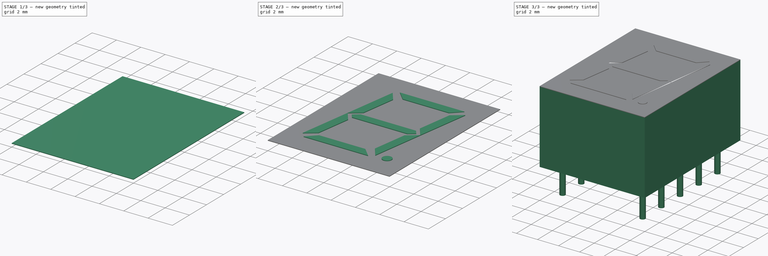
[diagram: build sequence overview — one tinted view per stage of 3, left to right]
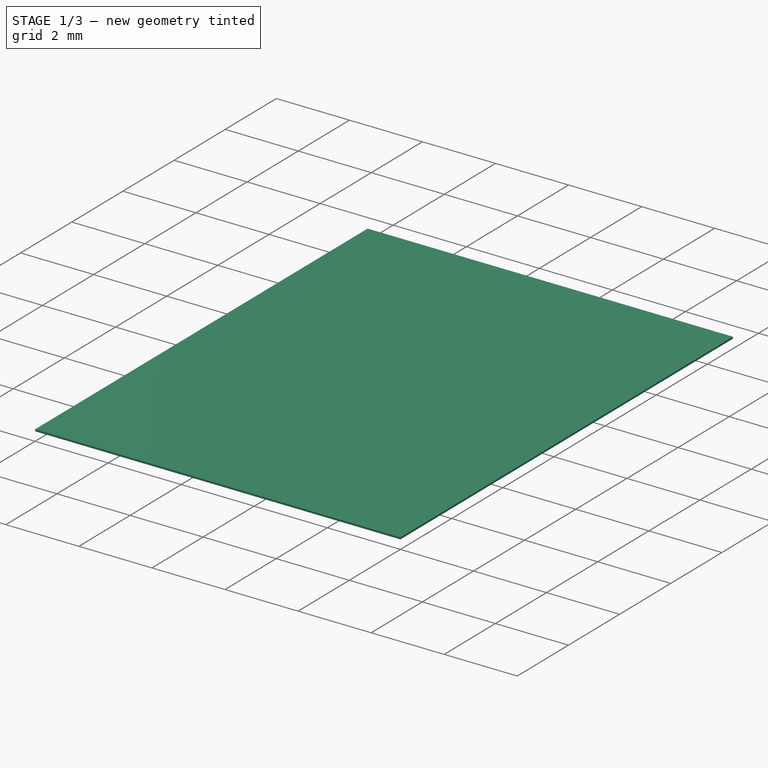
[diagram: stage 1 of 3 — iso view after this stage's code; geometry added in this stage tinted green]
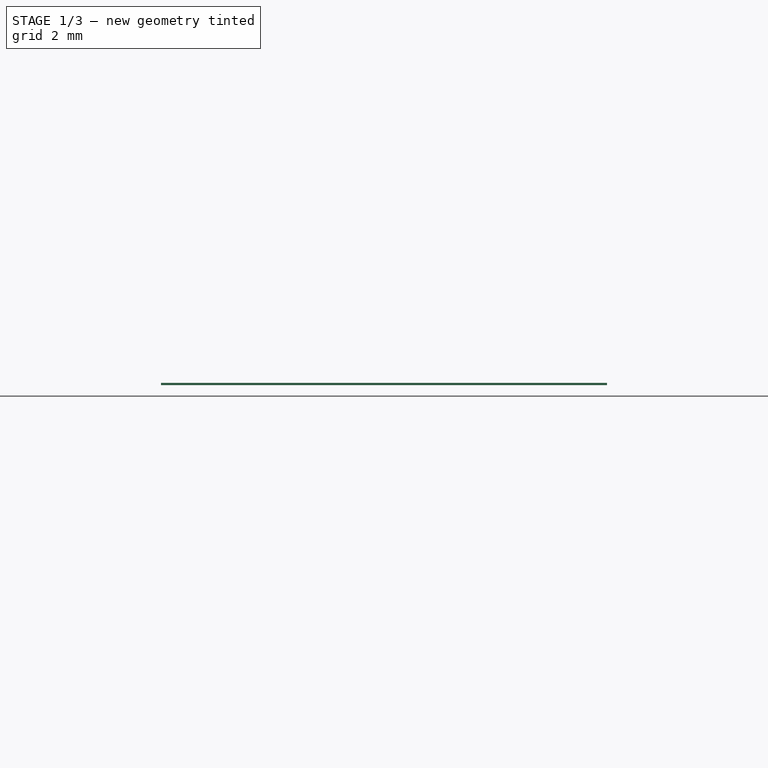
[diagram: stage 1 of 3 — front view after this stage's code; geometry added in this stage tinted green]
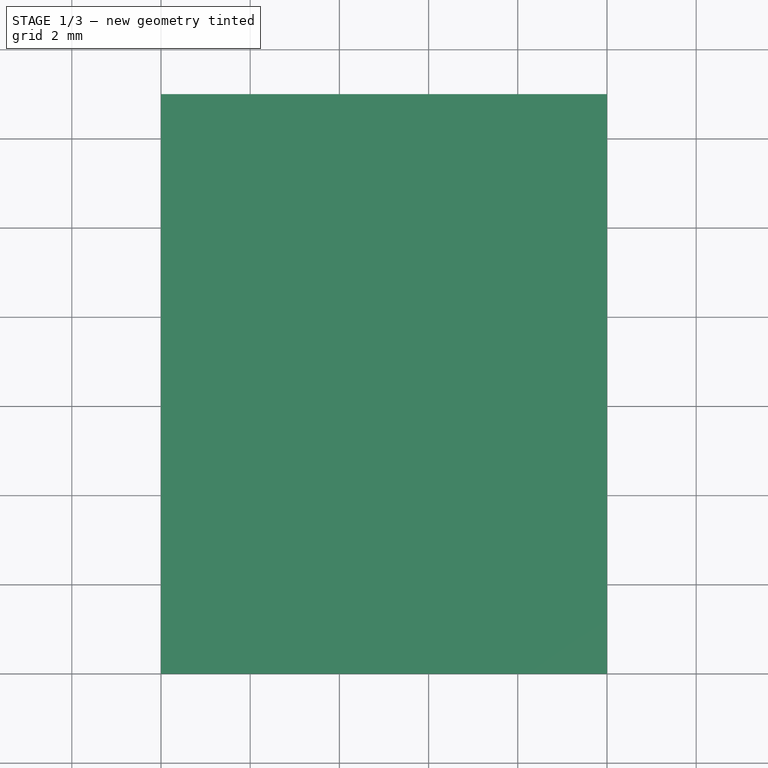
[diagram: stage 1 of 3 — top view after this stage's code; geometry added in this stage tinted green]
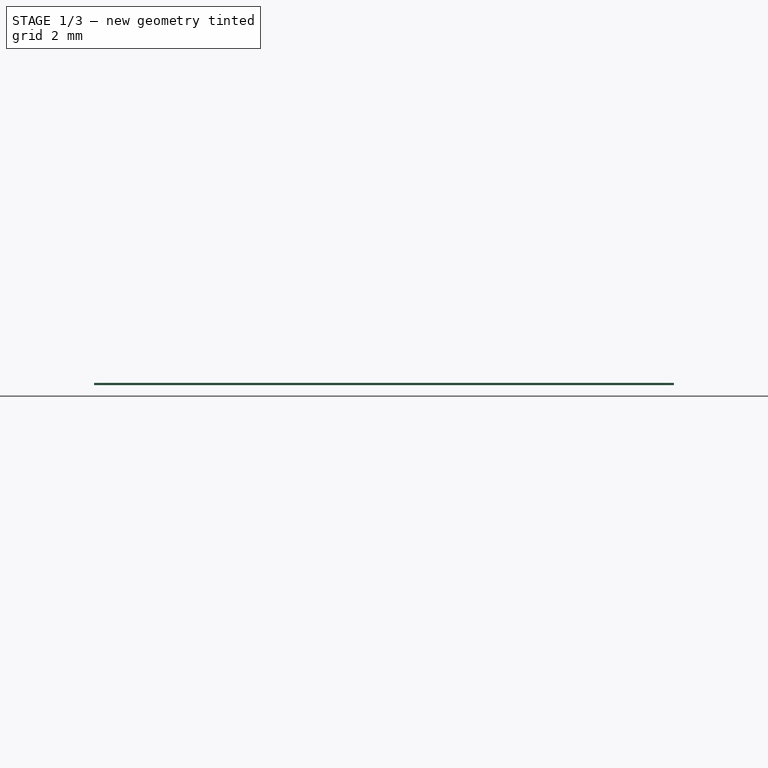
[diagram: stage 1 of 3 — right view after this stage's code; geometry added in this stage tinted green]
FCSTD DOCUMENT  (FreeCAD 1.0R39319 (Git))
Label: 1-digit-13mm
License: All rights reserved
LicenseURL: https://en.wikipedia.org/wiki/All_rights_reserved
objects: Sketcher::SketchObject×4, Part::Extrusion×4, Part::MultiFuse×1
note: 13 computed .brp shape members not serialized (recipe doc carries the construction recipe); baked Part::Feature solids carry a one-line shape summary decoded from their .brp

FEATURE [Sketcher::SketchObject] Sketch
  ArcFitTolerance = 1e-06
  FullyConstrained = true
  MakeInternals = false
  sketch-geometry (4):
    g0: LineSegment StartX=0 StartY=0 StartZ=0 EndX=10 EndY=0 EndZ=0
    g1: LineSegment StartX=10 StartY=0 StartZ=0 EndX=10 EndY=13 EndZ=0
    g2: LineSegment StartX=10 StartY=13 StartZ=0 EndX=0 EndY=13 EndZ=0
    g3: LineSegment StartX=0 StartY=13 StartZ=0 EndX=0 EndY=0 EndZ=0
  constraints (11):
    c: Coincident(g0,g1)
    c: Coincident(g1,g2)
    c: Coincident(g2,g3)
    c: Coincident(g3,g0)
    c: Horizontal(g0)
    c: Horizontal(g2)
    c: Vertical(g1)
    c: Vertical(g3)
    c: Distance(g1,g3) = 10
    c: Distance(g0,g2) = 13
    c: Coincident(g0,g-1)
FEATURE [Part::Extrusion] Extrude
  Base = -> Sketch
  Dir = (0,0,1)
  DirMode = 2
  FaceMakerClass = Part::FaceMakerBullseye
  FaceMakerMode = 3
  LengthFwd = 6.9
  LengthRev = 0
  Solid = true
  Symmetric = false
FEATURE [Sketcher::SketchObject] Sketch003
  ArcFitTolerance = 1e-06
  AttachmentSupport = -> [Extrude]
  ExternalGeometry = -> [Extrude]
  FullyConstrained = true
  MakeInternals = false
  MapMode = 5
  Placement = pos=(0,0,6.9) rot=(0,0,1;0rad)
  sketch-geometry (4):
    g0: LineSegment StartX=0 StartY=13 StartZ=0 EndX=0 EndY=0 EndZ=0
    g1: LineSegment StartX=0 StartY=0 StartZ=0 EndX=10 EndY=0 EndZ=0
    g2: LineSegment StartX=10 StartY=0 StartZ=0 EndX=10 EndY=13 EndZ=0
    g3: LineSegment StartX=10 StartY=13 StartZ=0 EndX=0 EndY=13 EndZ=0
  constraints (10):
    c: Coincident(g0,g1)
    c: Coincident(g1,g2)
    c: Coincident(g2,g3)
    c: Coincident(g3,g0)
    c: Vertical(g0)
    c: Vertical(g2)
    c: Horizontal(g1)
    c: Horizontal(g3)
    c: Coincident(g0,g-3)
    c: Coincident(g1,g-4)
FEATURE [Part::Extrusion] Extrude003
  Base = -> Sketch003
  Dir = (0,0,1)
  DirMode = 2
  FaceMakerClass = Part::FaceMakerBullseye
  FaceMakerMode = 3
  LengthFwd = 0.05
  LengthRev = 0
  Solid = true
  Symmetric = false
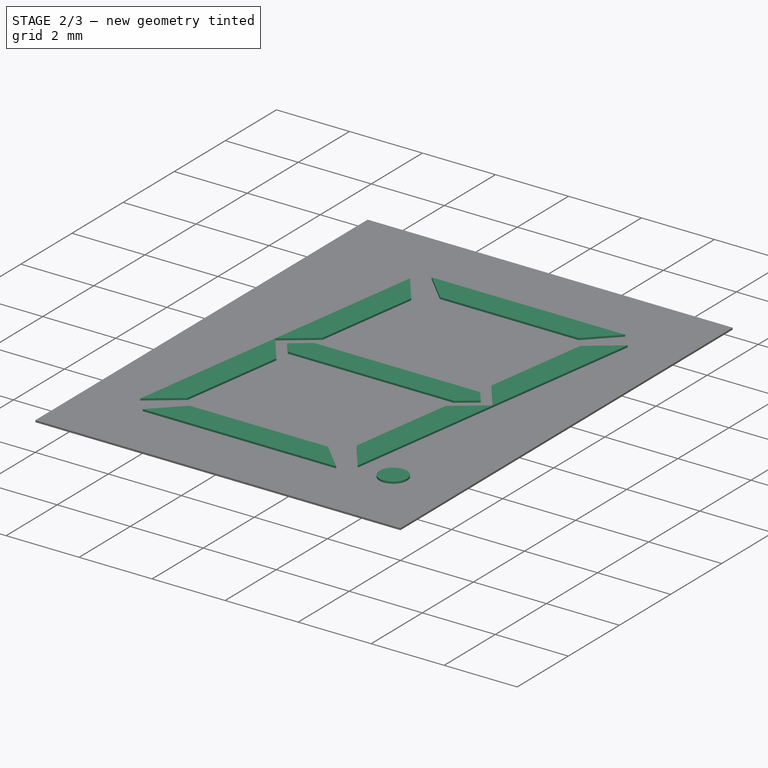
[diagram: stage 2 of 3 — iso view after this stage's code; geometry added in this stage tinted green]
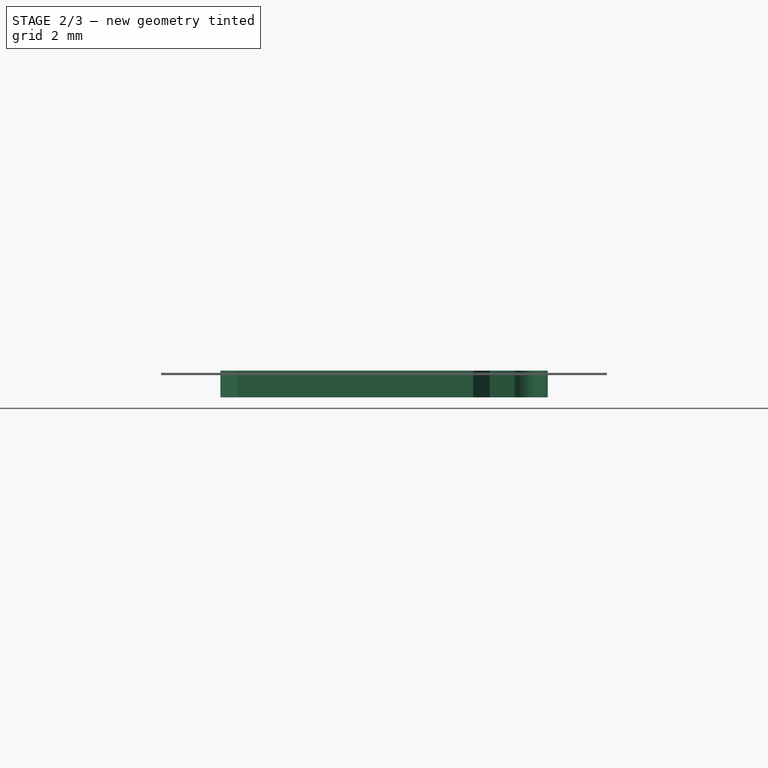
[diagram: stage 2 of 3 — front view after this stage's code; geometry added in this stage tinted green]
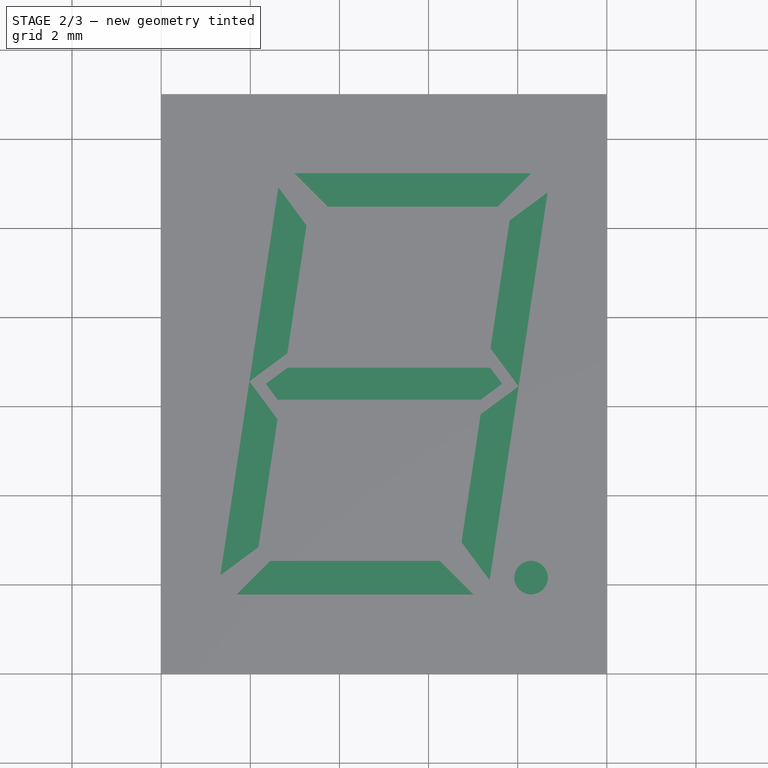
[diagram: stage 2 of 3 — top view after this stage's code; geometry added in this stage tinted green]
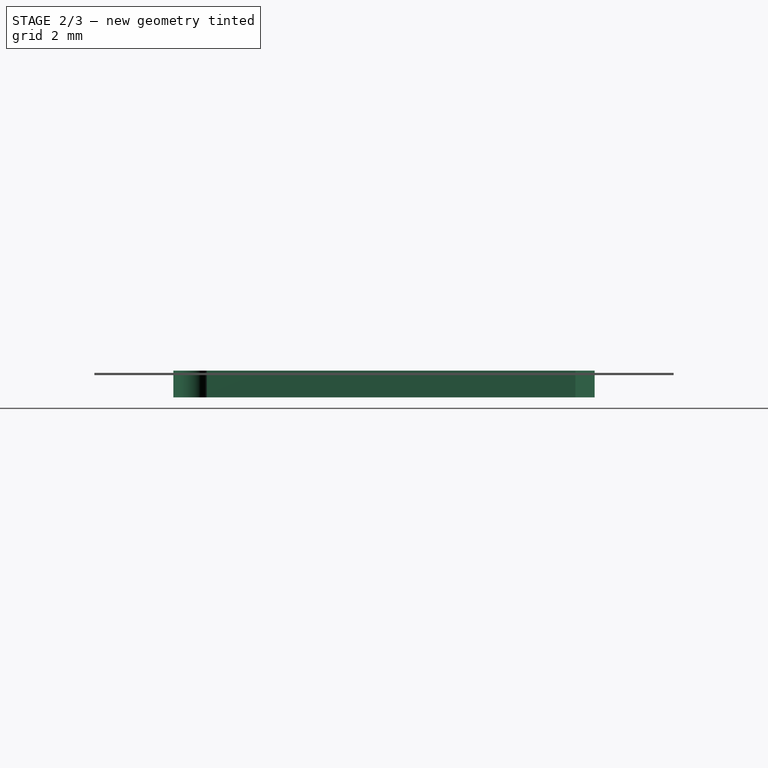
[diagram: stage 2 of 3 — right view after this stage's code; geometry added in this stage tinted green]
FEATURE [Sketcher::SketchObject] Sketch002
  ArcFitTolerance = 1e-06
  AttachmentSupport = -> [Extrude]
  ExternalGeometry = -> [Extrude]
  FullyConstrained = true
  MakeInternals = false
  MapMode = 5
  Placement = pos=(0,0,6.9) rot=(0,0,1;0rad)
  sketch-geometry (61):
    g0: LineSegment [constr] StartX=3 StartY=10.85 StartZ=0 EndX=8.3 EndY=10.85 EndZ=0
    g1: LineSegment [constr] StartX=2.35 StartY=6.5 StartZ=0 EndX=7.65 EndY=6.5 EndZ=0
    g2: LineSegment [constr] StartX=1.7 StartY=2.15 StartZ=0 EndX=7 EndY=2.15 EndZ=0
    g3: LineSegment [constr] StartX=3 StartY=10.85 StartZ=0 EndX=2.35 EndY=6.5 EndZ=0
    g4: LineSegment [constr] StartX=2.35 StartY=6.5 StartZ=0 EndX=1.7 EndY=2.15 EndZ=0
    g5: LineSegment [constr] StartX=7.65 StartY=6.5 StartZ=0 EndX=7 EndY=2.15 EndZ=0
    g6: LineSegment [constr] StartX=8.3 StartY=10.85 StartZ=0 EndX=7.65 EndY=6.5 EndZ=0
    g7: LineSegment [constr] StartX=2.35 StartY=6.5 StartZ=0 EndX=0 EndY=6.5 EndZ=0
    g8: LineSegment [constr] StartX=5 StartY=6.5 StartZ=0 EndX=5 EndY=13 EndZ=0
    g9: LineSegment [constr] StartX=3 StartY=10.85 StartZ=0 EndX=1.7 EndY=10.85 EndZ=0
    g10: LineSegment StartX=1.7 StartY=1.775 StartZ=0 EndX=7 EndY=1.775 EndZ=0
    g11: LineSegment StartX=2.45 StartY=2.525 StartZ=0 EndX=6.25 EndY=2.525 EndZ=0
    g12: LineSegment StartX=1.7 StartY=1.775 StartZ=0 EndX=2.45 EndY=2.525 EndZ=0
    g13: LineSegment StartX=7 StartY=1.775 StartZ=0 EndX=6.25 EndY=2.525 EndZ=0
    g14: LineSegment [constr] StartX=4.35 StartY=2.525 StartZ=0 EndX=4.35 EndY=1.775 EndZ=0
    g15: GeomPoint [constr] X=4.35 Y=2.15 Z=0
    g16: GeomPoint [constr] X=4.35 Y=2.15 Z=0
    g17: LineSegment StartX=3 StartY=11.225 StartZ=0 EndX=8.3 EndY=11.225 EndZ=0
    g18: LineSegment StartX=3.75 StartY=10.475 StartZ=0 EndX=7.55 EndY=10.475 EndZ=0
    g19: LineSegment StartX=3.75 StartY=10.475 StartZ=0 EndX=3 EndY=11.225 EndZ=0
    g20: LineSegment StartX=7.55 StartY=10.475 StartZ=0 EndX=8.3 EndY=11.225 EndZ=0
    g21: LineSegment [constr] StartX=5.65 StartY=11.225 StartZ=0 EndX=5.65 EndY=10.475 EndZ=0
    g22: GeomPoint [constr] X=5.65 Y=10.85 Z=0
    g23: GeomPoint [constr] X=5.65 Y=10.85 Z=0
    g24: LineSegment StartX=2.62912 StartY=10.9054 StartZ=0 EndX=1.97912 EndY=6.55542 EndZ=0
    g25: LineSegment StartX=3.26004 StartY=10.0528 StartZ=0 EndX=2.83172 EndY=7.18635 EndZ=0
    g26: LineSegment StartX=1.97912 StartY=6.55542 StartZ=0 EndX=1.32912 EndY=2.20542 EndZ=0
    g27: LineSegment StartX=2.61004 StartY=5.70282 StartZ=0 EndX=2.18172 EndY=2.83635 EndZ=0
    g28: LineSegment StartX=1.97912 StartY=6.55542 StartZ=0 EndX=2.61004 EndY=5.70282 EndZ=0
    g29: LineSegment StartX=1.32912 StartY=2.20542 StartZ=0 EndX=2.18172 EndY=2.83635 EndZ=0
    g30: LineSegment StartX=1.97912 StartY=6.55542 StartZ=0 EndX=2.83172 EndY=7.18635 EndZ=0
    g31: LineSegment StartX=2.62912 StartY=10.9054 StartZ=0 EndX=3.26004 EndY=10.0528 EndZ=0
    g32: LineSegment [constr] StartX=3.04588 StartY=8.61958 StartZ=0 EndX=2.30412 EndY=8.73042 EndZ=0
    g33: GeomPoint [constr] X=2.675 Y=8.675 Z=0
    g34: GeomPoint [constr] X=2.675 Y=8.675 Z=0
    g35: LineSegment [constr] StartX=2.39588 StartY=4.26958 StartZ=0 EndX=1.65412 EndY=4.38042 EndZ=0
    g36: GeomPoint [constr] X=2.025 Y=4.325 Z=0
    g37: GeomPoint [constr] X=2.025 Y=4.325 Z=0
    g38: LineSegment StartX=8.67088 StartY=10.7946 StartZ=0 EndX=8.02088 EndY=6.44458 EndZ=0
    g39: LineSegment StartX=8.02088 StartY=6.44458 StartZ=0 EndX=7.37088 EndY=2.09458 EndZ=0
    g40: LineSegment StartX=7.16828 StartY=5.81365 StartZ=0 EndX=6.73996 EndY=2.94718 EndZ=0
    g41: LineSegment StartX=7.81828 StartY=10.1637 StartZ=0 EndX=7.38996 EndY=7.29718 EndZ=0
    g42: LineSegment StartX=8.02088 StartY=6.44458 StartZ=0 EndX=7.38996 EndY=7.29718 EndZ=0
    g43: LineSegment StartX=7.81828 StartY=10.1637 StartZ=0 EndX=8.67088 EndY=10.7946 EndZ=0
    g44: LineSegment StartX=8.02088 StartY=6.44458 StartZ=0 EndX=7.16828 EndY=5.81365 EndZ=0
    g45: LineSegment StartX=7.37088 StartY=2.09458 StartZ=0 EndX=6.73996 EndY=2.94718 EndZ=0
    g46: LineSegment [constr] StartX=7.69588 StartY=4.26958 StartZ=0 EndX=6.95412 EndY=4.38042 EndZ=0
    g47: LineSegment [constr] StartX=8.34588 StartY=8.61958 StartZ=0 EndX=7.60412 EndY=8.73042 EndZ=0
    g48: GeomPoint [constr] X=7.975 Y=8.675 Z=0
    g49: GeomPoint [constr] X=7.975 Y=8.675 Z=0
    g50: GeomPoint [constr] X=7.325 Y=4.325 Z=0
    g51: GeomPoint [constr] X=7.325 Y=4.325 Z=0
    g52: LineSegment StartX=2.35 StartY=6.5 StartZ=0 EndX=2.83462 EndY=6.85862 EndZ=0
    g53: LineSegment StartX=2.35 StartY=6.5 StartZ=0 EndX=2.61538 EndY=6.14138 EndZ=0
    g54: LineSegment StartX=7.65 StartY=6.5 StartZ=0 EndX=7.38462 EndY=6.85862 EndZ=0
    g55: LineSegment StartX=7.65 StartY=6.5 StartZ=0 EndX=7.16538 EndY=6.14138 EndZ=0
    g56: LineSegment StartX=7.16538 StartY=6.14138 StartZ=0 EndX=2.61538 EndY=6.14138 EndZ=0
    g57: LineSegment StartX=2.83462 StartY=6.85862 StartZ=0 EndX=7.38462 EndY=6.85862 EndZ=0
    g58: LineSegment [constr] StartX=5.10962 StartY=6.85862 StartZ=0 EndX=4.89038 EndY=6.14138 EndZ=0
    g59: GeomPoint [constr] X=5 Y=6.5 Z=0
    g60: Circle CenterX=8.3 CenterY=2.15 CenterZ=0 NormalX=0 NormalY=0 NormalZ=1 AngleXU=0 Radius=0.375
  constraints (139):
    c: Horizontal(g0)
    c: Horizontal(g1)
    c: Horizontal(g2)
    c: Coincident(g3,g0)
    c: Coincident(g3,g1)
    c: Coincident(g4,g1)
    c: Coincident(g4,g2)
    c: Coincident(g5,g1)
    c: Coincident(g5,g2)
    c: Coincident(g6,g0)
    c: Coincident(g6,g1)
    c: DistanceY(g3,g3) = 4.35
    c: Equal(g3,g4)
    c: DistanceX(g0,g0) = 5.3
    c: Parallel(g3,g6)
    c: Parallel(g4,g5)
    c: Parallel(g4,g3)
    c: Coincident(g7,g1)
    c: Symmetric(g-3,g-3,g7)
    c: Horizontal(g7)
    c: Symmetric(g1,g1,g8)
    c: Symmetric(g-4,g-4,g8)
    c: Vertical(g8)
    c: Coincident(g9,g0)
    c: Horizontal(g9)
    c: Vertical(g2,g9)
    c: DistanceX(g9,g9) = 1.3
    c: Horizontal(g10)
    c: Horizontal(g11)
    c: Coincident(g12,g10)
    c: Coincident(g12,g11)
    c: Coincident(g13,g10)
    c: Coincident(g13,g11)
    c: Symmetric(g11,g11,g14)
    c: Symmetric(g10,g10,g14)
    c: Vertical(g14)
    c: Angle(g10,g12) = 0.785398
    c: Equal(g2,g10)
    c: Symmetric(g14,g14,g15)
    c: Symmetric(g2,g2,g16)
    c: Coincident(g15,g16)
    c: Distance(g14) = 0.75
    c: Horizontal(g17)
    c: Horizontal(g18)
    c: Coincident(g19,g18)
    c: Coincident(g19,g17)
    c: Coincident(g20,g18)
    c: Coincident(g20,g17)
    c: Symmetric(g17,g17,g21)
    c: Symmetric(g18,g18,g21)
    c: Vertical(g21)
    c: Symmetric(g21,g21,g22)
    c: Symmetric(g0,g0,g23)
    c: Coincident(g23,g22)
    c: Equal(g21,g14)
    c: Equal(g10,g17)
    c: Parallel(g20,g12)
    c: Coincident(g28,g26)
    c: Coincident(g28,g27)
    c: Coincident(g29,g26)
    c: Coincident(g29,g27)
    c: Coincident(g30,g24)
    c: Coincident(g30,g25)
    c: Coincident(g31,g24)
    c: Coincident(g31,g25)
    c: Parallel(g3,g24)
    c: Parallel(g24,g25)
    c: Parallel(g4,g26)
    c: Parallel(g26,g27)
    c: Symmetric(g25,g25,g32)
    c: Symmetric(g24,g24,g32)
    c: Perpendicular(g24,g32)
    c: Equal(g3,g24)
    c: Equal(g32,g21)
    c: Symmetric(g32,g32,g33)
    c: Symmetric(g3,g3,g34)
    c: Coincident(g34,g33)
    c: Angle(g24,g31) = 0.785398
    c: Equal(g4,g26)
    c: Symmetric(g27,g27,g35)
    c: Symmetric(g26,g26,g35)
    c: Perpendicular(g35,g26)
    c: Equal(g35,g21)
    c: Symmetric(g35,g35,g36)
    c: Symmetric(g4,g4,g37)
    c: Coincident(g37,g36)
    c: Parallel(g29,g30)
    c: Coincident(g42,g38)
    c: Coincident(g42,g41)
    c: Coincident(g43,g41)
    c: Coincident(g43,g38)
    c: Coincident(g44,g39)
    c: Coincident(g44,g40)
    c: Coincident(g45,g39)
    c: Coincident(g45,g40)
    c: Symmetric(g39,g39,g46)
    c: Symmetric(g40,g40,g46)
    c: Symmetric(g38,g38,g47)
    c: Symmetric(g41,g41,g47)
    c: Perpendicular(g39,g46)
    c: Perpendicular(g38,g47)
    c: Parallel(g6,g38)
    c: Parallel(g5,g39)
    c: Parallel(g31,g42)
    c: Parallel(g42,g45)
    c: Parallel(g38,g41)
    c: Parallel(g39,g40)
    c: Symmetric(g47,g47,g48)
    c: Symmetric(g6,g6,g49)
    c: Coincident(g48,g49)
    c: Symmetric(g46,g46,g50)
    c: Symmetric(g5,g5,g51)
    c: Coincident(g50,g51)
    c: Equal(g46,g47)
    c: Equal(g47,g21)
    c: Equal(g6,g38)
    c: Equal(g5,g39)
    c: Coincident(g52,g1)
    c: Coincident(g53,g1)
    c: Coincident(g54,g1)
    c: Coincident(g55,g1)
    c: Coincident(g56,g55)
    c: Coincident(g56,g53)
    c: Horizontal(g56)
    c: Coincident(g57,g52)
    c: Coincident(g57,g54)
    c: Horizontal(g57)
    c: Parallel(g54,g42)
    c: Parallel(g55,g44)
    c: Parallel(g28,g53)
    c: Parallel(g30,g52)
    c: Symmetric(g57,g57,g58)
    c: Symmetric(g56,g56,g58)
    c: Equal(g58,g21)
    c: Symmetric(g58,g58,g59)
    c: Horizontal(g59,g8)
    c: Diameter(g60) = 0.75
    c: Horizontal(g2,g60)
    c: Vertical(g60,g0)
FEATURE [Part::Extrusion] Extrude002
  Base = -> Sketch002
  Dir = (0,0,1)
  DirMode = 2
  FaceMakerClass = Part::FaceMakerBullseye
  FaceMakerMode = 3
  LengthFwd = 0.1
  LengthRev = 0.5
  Solid = true
  Symmetric = false
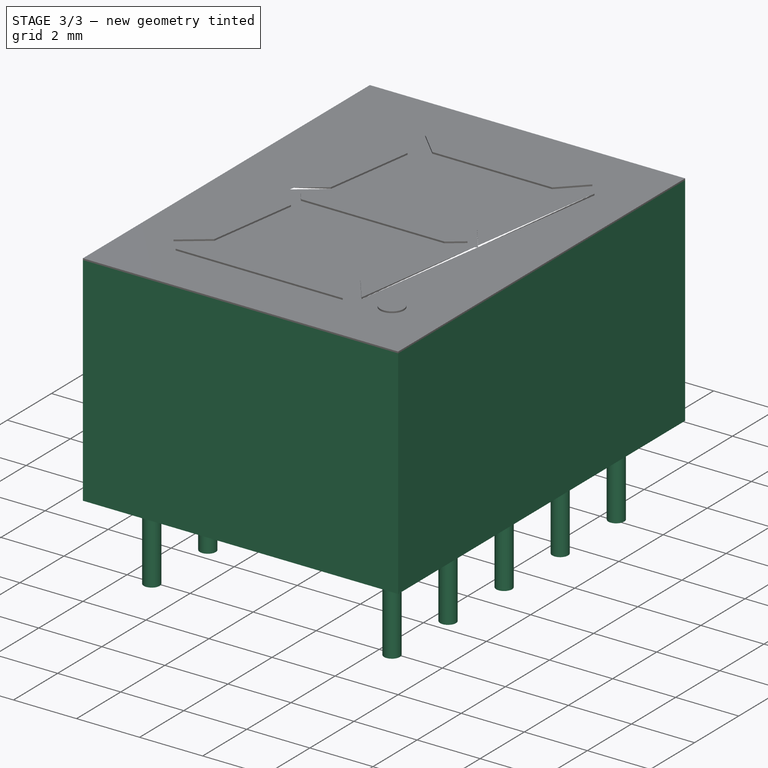
[diagram: stage 3 of 3 — iso view after this stage's code; geometry added in this stage tinted green]
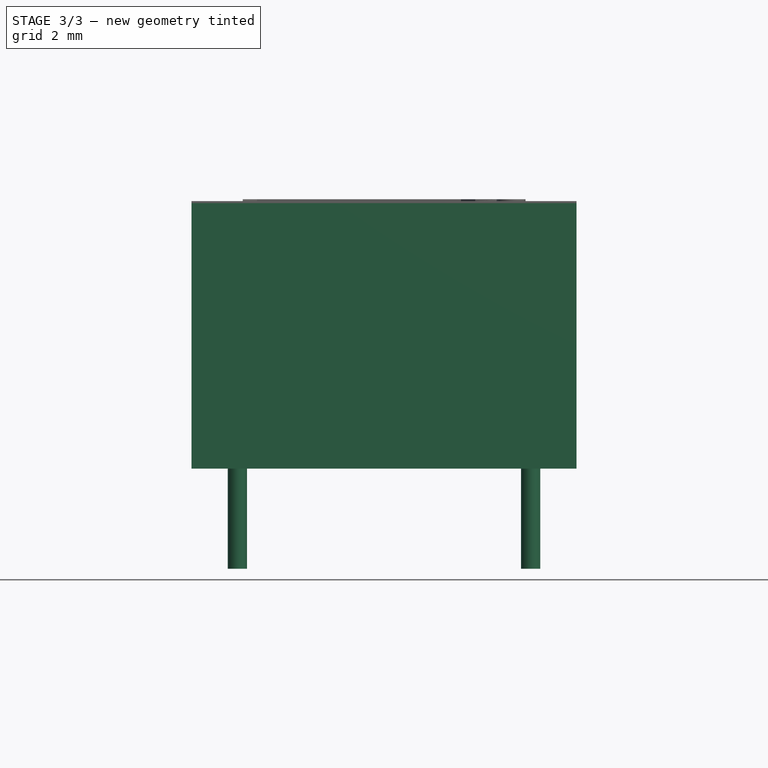
[diagram: stage 3 of 3 — front view after this stage's code; geometry added in this stage tinted green]
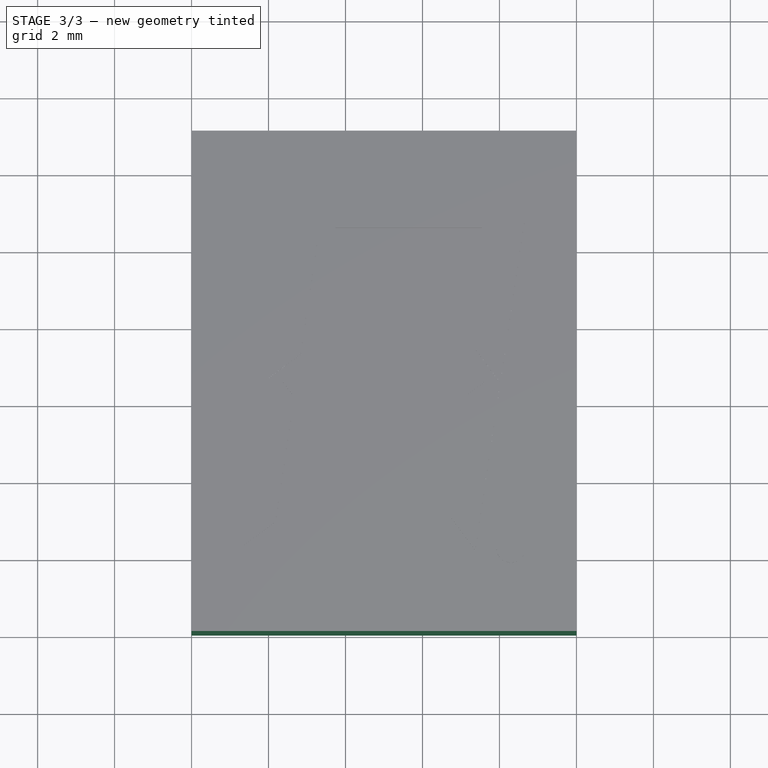
[diagram: stage 3 of 3 — top view after this stage's code; geometry added in this stage tinted green]
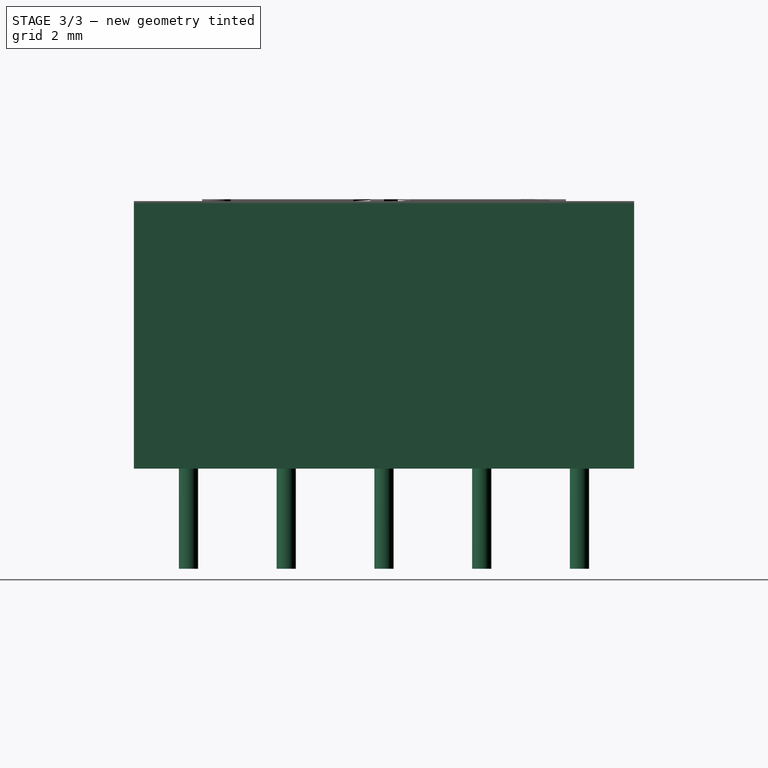
[diagram: stage 3 of 3 — right view after this stage's code; geometry added in this stage tinted green]
FEATURE [Sketcher::SketchObject] Sketch001
  ArcFitTolerance = 1e-06
  AttachmentSupport = -> [Extrude]
  ExternalGeometry = -> [Extrude]
  FullyConstrained = true
  MakeInternals = false
  MapMode = 5
  Placement = pos=(0,0,0) rot=(1,0,0;3.14159rad)
  sketch-geometry (21):
    g0: Circle CenterX=1.19 CenterY=-1.42 CenterZ=0 NormalX=0 NormalY=0 NormalZ=1 AngleXU=0 Radius=0.25
    g1: Circle CenterX=8.81 CenterY=-1.42 CenterZ=0 NormalX=0 NormalY=0 NormalZ=1 AngleXU=0 Radius=0.25
    g2: Circle CenterX=1.19 CenterY=-3.96 CenterZ=0 NormalX=0 NormalY=0 NormalZ=1 AngleXU=0 Radius=0.25
    g3: Circle CenterX=8.81 CenterY=-3.96 CenterZ=0 NormalX=0 NormalY=0 NormalZ=1 AngleXU=0 Radius=0.25
    g4: Circle CenterX=1.19 CenterY=-6.5 CenterZ=0 NormalX=0 NormalY=0 NormalZ=1 AngleXU=0 Radius=0.25
    g5: Circle CenterX=1.19 CenterY=-9.04 CenterZ=0 NormalX=0 NormalY=0 NormalZ=1 AngleXU=0 Radius=0.25
    g6: Circle CenterX=8.81 CenterY=-6.5 CenterZ=0 NormalX=0 NormalY=0 NormalZ=1 AngleXU=0 Radius=0.25
    g7: Circle CenterX=8.81 CenterY=-9.04 CenterZ=0 NormalX=0 NormalY=0 NormalZ=1 AngleXU=0 Radius=0.25
    g8: LineSegment [constr] StartX=1.19 StartY=-1.42 StartZ=0 EndX=8.81 EndY=-1.42 EndZ=0
    g9: LineSegment [constr] StartX=1.19 StartY=-3.96 StartZ=0 EndX=8.81 EndY=-3.96 EndZ=0
    g10: LineSegment [constr] StartX=1.19 StartY=-6.5 StartZ=0 EndX=8.81 EndY=-6.5 EndZ=0
    g11: LineSegment [constr] StartX=1.19 StartY=-9.04 StartZ=0 EndX=8.81 EndY=-9.04 EndZ=0
    g12: LineSegment [constr] StartX=5 StartY=-1.42 StartZ=0 EndX=5 EndY=-3.96 EndZ=0
    g13: LineSegment [constr] StartX=5 StartY=-3.96 StartZ=0 EndX=5 EndY=-6.5 EndZ=0
    g14: LineSegment [constr] StartX=5 StartY=-6.5 StartZ=0 EndX=5 EndY=-9.04 EndZ=0
    g15: LineSegment [constr] StartX=5 StartY=-1.42 StartZ=0 EndX=5 EndY=0 EndZ=0
    g16: Circle CenterX=1.19 CenterY=-11.58 CenterZ=0 NormalX=0 NormalY=0 NormalZ=1 AngleXU=0 Radius=0.25
    g17: Circle CenterX=8.81 CenterY=-11.58 CenterZ=0 NormalX=0 NormalY=0 NormalZ=1 AngleXU=0 Radius=0.25
    g18: LineSegment [constr] StartX=1.19 StartY=-11.58 StartZ=0 EndX=8.81 EndY=-11.58 EndZ=0
    g19: LineSegment [constr] StartX=5 StartY=-9.04 StartZ=0 EndX=5 EndY=-11.58 EndZ=0
    g20: LineSegment [constr] StartX=1.19 StartY=-6.5 StartZ=0 EndX=0 EndY=-6.5 EndZ=0
  constraints (52):
    c: Coincident(g8,g0)
    c: Coincident(g8,g1)
    c: Coincident(g9,g2)
    c: Coincident(g9,g3)
    c: Coincident(g10,g4)
    c: Coincident(g10,g6)
    c: Horizontal(g10)
    c: Coincident(g11,g5)
    c: Coincident(g11,g7)
    c: Horizontal(g11)
    c: Horizontal(g9)
    c: Horizontal(g8)
    c: Symmetric(g8,g8,g12)
    c: Symmetric(g9,g9,g12)
    c: Coincident(g13,g12)
    c: Symmetric(g10,g10,g13)
    c: Coincident(g14,g13)
    c: Symmetric(g11,g11,g14)
    c: Vertical(g14)
    c: Vertical(g13)
    c: Vertical(g12)
    c: DistanceX(g8,g8) = 7.62
    c: Equal(g8,g9)
    c: Equal(g9,g10)
    c: Equal(g10,g11)
    c: Diameter(g0) = 0.5
    c: DistanceY(g12,g12) = 2.54
    c: Equal(g12,g13)
    c: Equal(g13,g14)
    c: Equal(g0,g1)
    c: Equal(g1,g2)
    c: Equal(g2,g3)
    c: Equal(g3,g4)
    c: Equal(g4,g6)
    c: Equal(g6,g5)
    c: Equal(g5,g7)
    c: Coincident(g15,g12)
    c: Symmetric(g-3,g-3,g15)
    c: Vertical(g15)
    c: Coincident(g18,g16)
    c: Coincident(g18,g17)
    c: Horizontal(g18)
    c: Coincident(g19,g14)
    c: Symmetric(g18,g18,g19)
    c: Vertical(g19)
    c: Equal(g11,g18)
    c: Equal(g19,g14)
    c: Coincident(g20,g4)
    c: Symmetric(g-4,g-4,g20)
    c: Horizontal(g20)
    c: Equal(g16,g17)
    c: Equal(g17,g5)
FEATURE [Part::Extrusion] Extrude001
  Base = -> Sketch001
  Dir = (0,0,-1)
  DirMode = 2
  FaceMakerClass = Part::FaceMakerBullseye
  FaceMakerMode = 3
  LengthFwd = 2.6
  LengthRev = 0
  Solid = true
  Symmetric = false
FEATURE [Part::MultiFuse] Fusion
  Shapes = -> [Extrude,Extrude001,Extrude002,Extrude003]
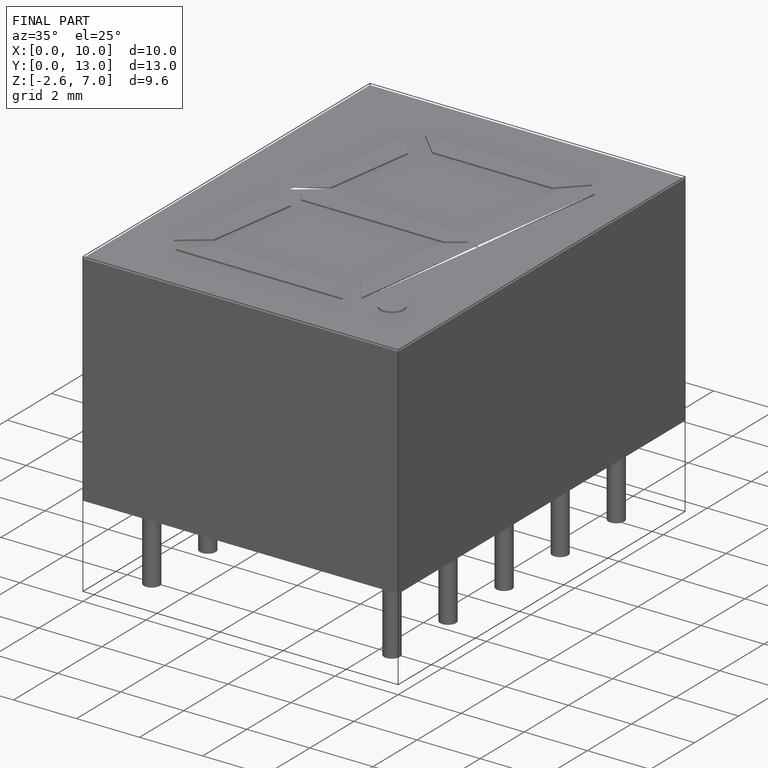
[diagram: finished part — iso view with bounding-box wireframe]
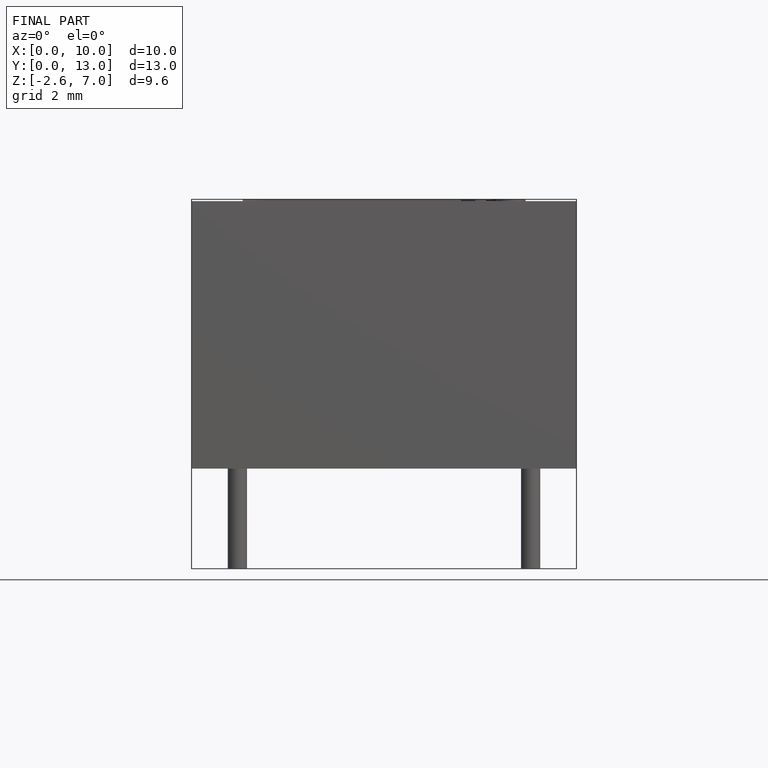
[diagram: finished part — front view with bounding-box wireframe]
